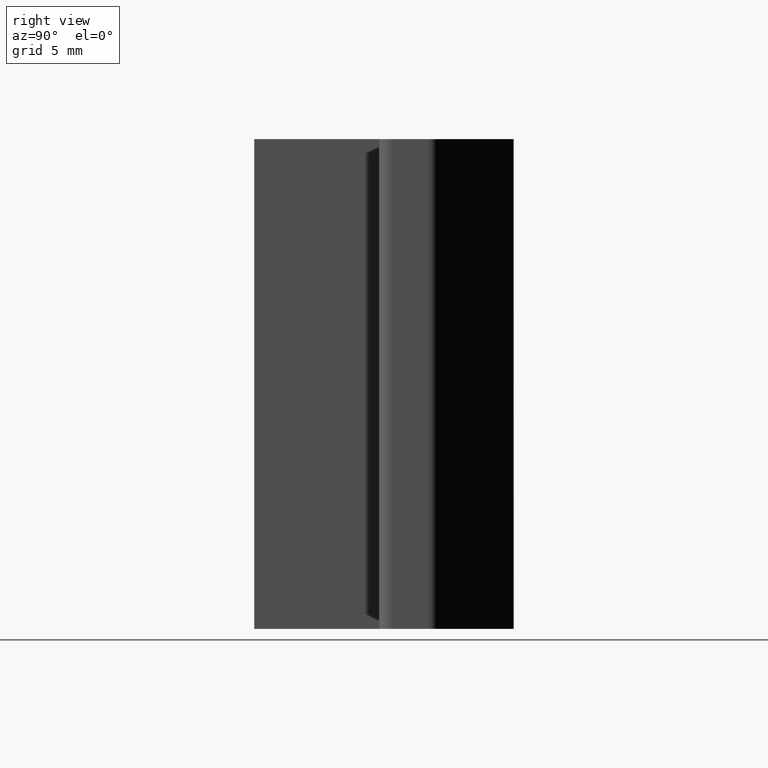
[diagram: clean part render]
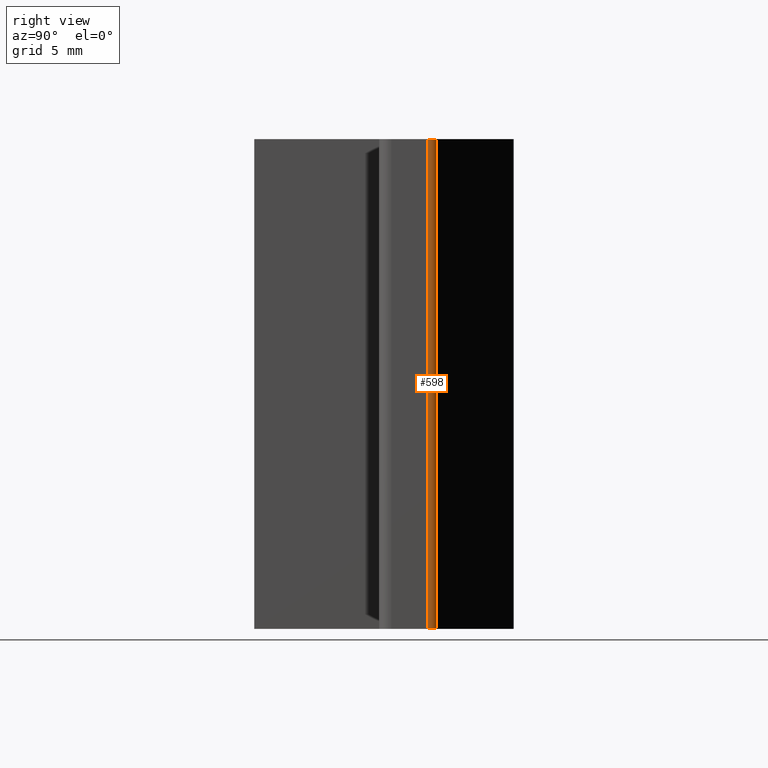
[diagram: same view with one face highlighted and labeled with its STEP entity id]
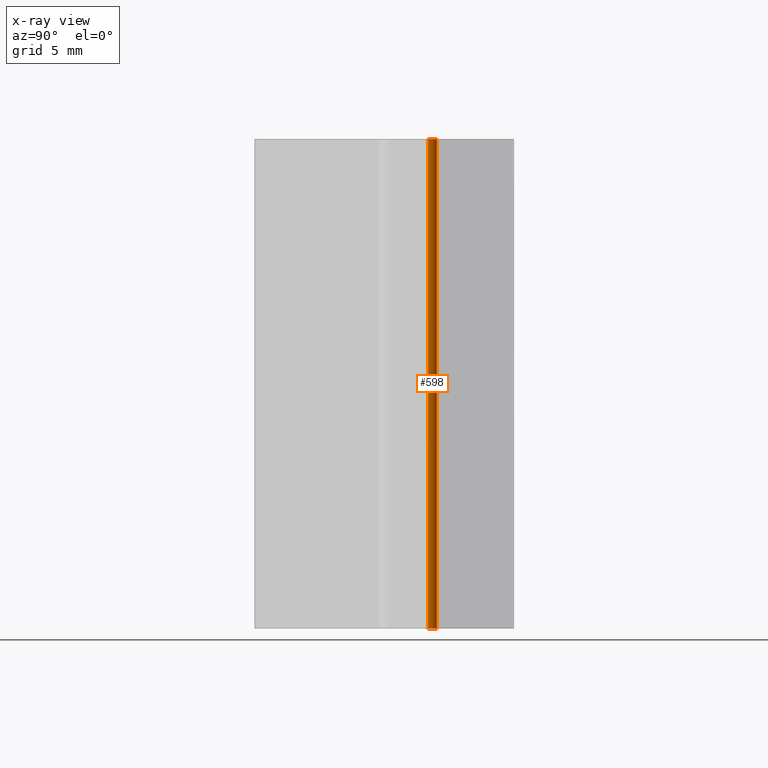
[diagram: x-ray of the same camera — body ghosted, the highlighted face saturated]
A machine part, right view. The second image highlights one B-rep face of the part: STEP entity #598.
The next image is the same camera in x-ray: the body ghosted, the highlighted face saturated — about 0% of this face is hidden behind the body in this view.
In plain terms, the highlighted cylindrical surface (edge-blend (fillet) strip) has radius 0.5 mm, axis along (0, 0, 1).
Its self-contained STEP definition (entity closure, byte-faithful):
#58=FACE_OUTER_BOUND('',#89,.T.);
#89=EDGE_LOOP('',(#522,#523,#524,#525));
#153=LINE('',#1051,#208);
#154=LINE('',#1055,#209);
#208=VECTOR('',#831,10.);
#209=VECTOR('',#836,10.);
#229=CIRCLE('',#656,0.500000000000001);
#235=CIRCLE('',#674,0.500000000000001);
#277=VERTEX_POINT('',#997);
#278=VERTEX_POINT('',#999);
#292=VERTEX_POINT('',#1049);
#293=VERTEX_POINT('',#1053);
#350=EDGE_CURVE('',#277,#278,#229,.T.);
#376=EDGE_CURVE('',#277,#292,#153,.T.);
#377=EDGE_CURVE('',#293,#292,#235,.T.);
#378=EDGE_CURVE('',#278,#293,#154,.T.);
#522=ORIENTED_EDGE('',*,*,#376,.T.);
#523=ORIENTED_EDGE('',*,*,#377,.F.);
#524=ORIENTED_EDGE('',*,*,#378,.F.);
#525=ORIENTED_EDGE('',*,*,#350,.F.);
#571=CYLINDRICAL_SURFACE('',#673,0.500000000000001);
#598=ADVANCED_FACE('',(#58),#571,.T.);
#656=AXIS2_PLACEMENT_3D('',#1000,#777,#778);
#673=AXIS2_PLACEMENT_3D('',#1052,#832,#833);
#674=AXIS2_PLACEMENT_3D('',#1054,#834,#835);
#777=DIRECTION('center_axis',(0.,0.,-1.));
#778=DIRECTION('ref_axis',(1.,0.,0.));
#831=DIRECTION('',(0.,0.,1.));
#832=DIRECTION('center_axis',(0.,0.,1.));
#833=DIRECTION('ref_axis',(1.,0.,0.));
#834=DIRECTION('center_axis',(0.,0.,1.));
#835=DIRECTION('ref_axis',(1.,0.,0.));
#836=DIRECTION('',(0.,0.,1.));
#997=CARTESIAN_POINT('',(9.60355339059328,2.35355339059327,-10.));
#999=CARTESIAN_POINT('',(9.75,2.,-10.));
#1000=CARTESIAN_POINT('Origin',(9.25,2.,-10.));
#1049=CARTESIAN_POINT('',(9.60355339059328,2.35355339059327,10.));
#1051=CARTESIAN_POINT('',(9.60355339059328,2.35355339059327,0.));
#1052=CARTESIAN_POINT('Origin',(9.25,2.,0.));
#1053=CARTESIAN_POINT('',(9.75,2.,10.));
#1054=CARTESIAN_POINT('Origin',(9.25,2.,10.));
#1055=CARTESIAN_POINT('',(9.75,2.,0.));